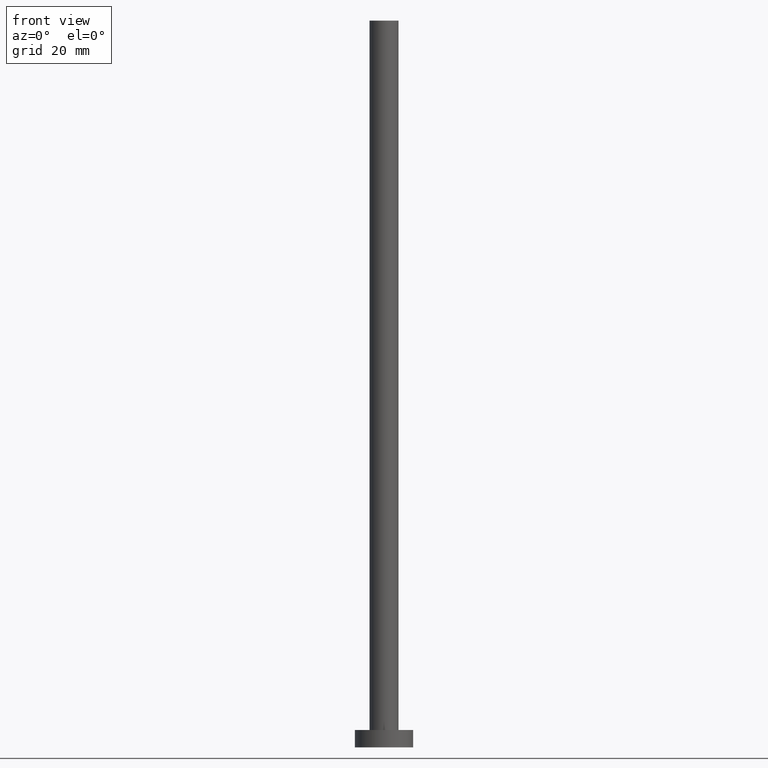
[diagram: clean part render]
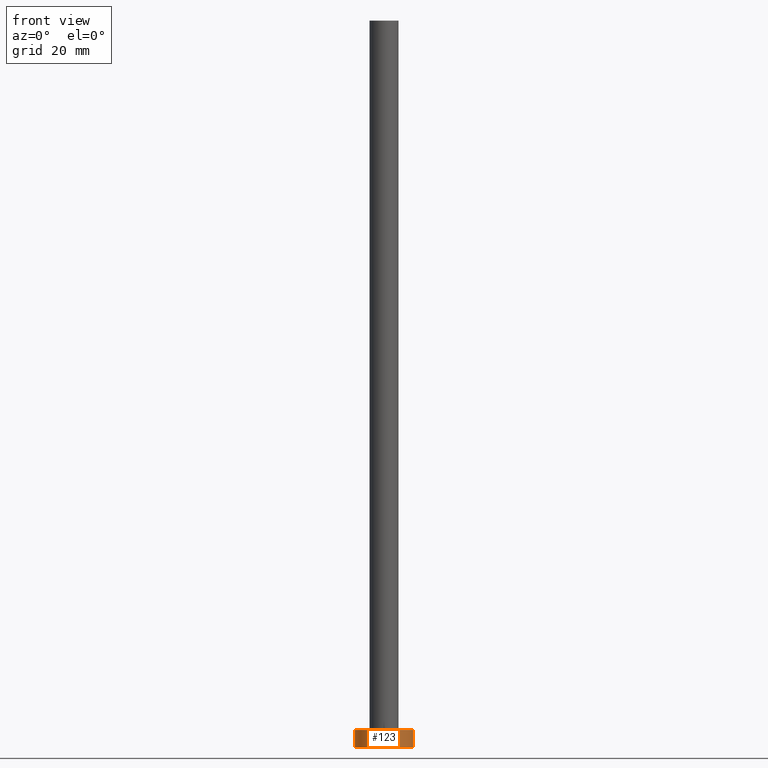
[diagram: same view with one face highlighted and labeled with its STEP entity id]
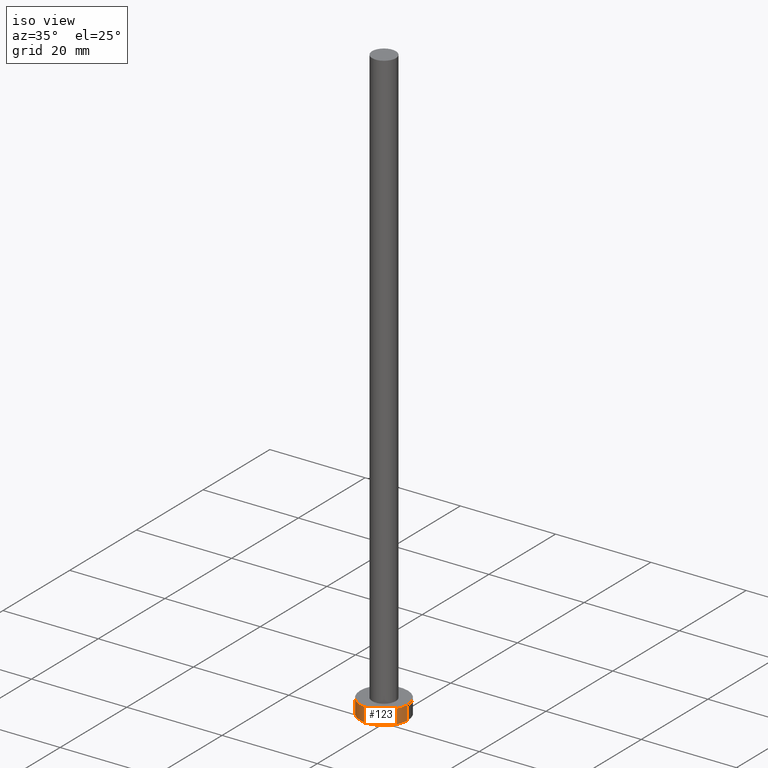
[diagram: same view with one face highlighted and labeled with its STEP entity id]
A machine part, front view. The second image highlights one B-rep face of the part: STEP entity #123.
A second angle (iso view) of the same face is appended — the face is thin or edge-on in the first view.
In plain terms, the highlighted cylindrical surface (edge-blend (fillet) strip) has radius 5 mm, axis along (-0, -0, -1).
Its self-contained STEP definition (entity closure, byte-faithful):
#2 = CYLINDRICAL_SURFACE ( 'NONE', #237, 5.000000000000000000 ) ;
#8 = DIRECTION ( 'NONE',  ( 0.000000000000000000, 0.000000000000000000, 1.000000000000000000 ) ) ;
#14 = VERTEX_POINT ( 'NONE', #210 ) ;
#15 = CARTESIAN_POINT ( 'NONE',  ( 0.000000000000000000, 0.000000000000000000, 3.000000000000000000 ) ) ;
#17 = CIRCLE ( 'NONE', #250, 5.000000000000000000 ) ;
#19 = LINE ( 'NONE', #34, #159 ) ;
#21 = CARTESIAN_POINT ( 'NONE',  ( 5.000000000000000000, 6.123233995736766282E-16, 3.000000000000000000 ) ) ;
#24 = DIRECTION ( 'NONE',  ( 1.000000000000000000, 0.000000000000000000, 0.000000000000000000 ) ) ;
#34 = CARTESIAN_POINT ( 'NONE',  ( -5.000000000000000000, 0.000000000000000000, 3.000000000000000000 ) ) ;
#53 = ORIENTED_EDGE ( 'NONE', *, *, #114, .T. ) ;
#65 = AXIS2_PLACEMENT_3D ( 'NONE', #223, #124, #24 ) ;
#66 = CARTESIAN_POINT ( 'NONE',  ( -5.000000000000000000, 0.000000000000000000, 3.000000000000000000 ) ) ;
#72 = DIRECTION ( 'NONE',  ( -1.000000000000000000, 0.000000000000000000, 0.000000000000000000 ) ) ;
#77 = EDGE_CURVE ( 'NONE', #232, #177, #17, .T. ) ;
#81 = CIRCLE ( 'NONE', #65, 5.000000000000000000 ) ;
#106 = VECTOR ( 'NONE', #243, 1000.000000000000000 ) ;
#114 = EDGE_CURVE ( 'NONE', #232, #175, #19, .T. ) ;
#121 = CARTESIAN_POINT ( 'NONE',  ( -5.000000000000000000, 0.000000000000000000, 0.000000000000000000 ) ) ;
#123 = ADVANCED_FACE ( 'NONE', ( #178 ), #2, .T. ) ;
#124 = DIRECTION ( 'NONE',  ( 0.000000000000000000, 0.000000000000000000, 1.000000000000000000 ) ) ;
#127 = CARTESIAN_POINT ( 'NONE',  ( 5.000000000000000000, 6.123233995736766282E-16, 3.000000000000000000 ) ) ;
#139 = DIRECTION ( 'NONE',  ( -0.000000000000000000, -0.000000000000000000, -1.000000000000000000 ) ) ;
#159 = VECTOR ( 'NONE', #139, 1000.000000000000000 ) ;
#163 = LINE ( 'NONE', #127, #106 ) ;
#164 = ORIENTED_EDGE ( 'NONE', *, *, #190, .F. ) ;
#172 = EDGE_LOOP ( 'NONE', ( #164, #234, #53, #195 ) ) ;
#175 = VERTEX_POINT ( 'NONE', #121 ) ;
#177 = VERTEX_POINT ( 'NONE', #21 ) ;
#178 = FACE_OUTER_BOUND ( 'NONE', #172, .T. ) ;
#181 = CARTESIAN_POINT ( 'NONE',  ( 0.000000000000000000, 0.000000000000000000, 3.000000000000000000 ) ) ;
#190 = EDGE_CURVE ( 'NONE', #177, #14, #163, .T. ) ;
#195 = ORIENTED_EDGE ( 'NONE', *, *, #233, .T. ) ;
#201 = DIRECTION ( 'NONE',  ( -0.000000000000000000, -0.000000000000000000, -1.000000000000000000 ) ) ;
#210 = CARTESIAN_POINT ( 'NONE',  ( 5.000000000000000000, 6.123233995736766282E-16, 0.000000000000000000 ) ) ;
#218 = DIRECTION ( 'NONE',  ( 1.000000000000000000, 0.000000000000000000, 0.000000000000000000 ) ) ;
#223 = CARTESIAN_POINT ( 'NONE',  ( 0.000000000000000000, 0.000000000000000000, 0.000000000000000000 ) ) ;
#232 = VERTEX_POINT ( 'NONE', #66 ) ;
#233 = EDGE_CURVE ( 'NONE', #175, #14, #81, .T. ) ;
#234 = ORIENTED_EDGE ( 'NONE', *, *, #77, .F. ) ;
#237 = AXIS2_PLACEMENT_3D ( 'NONE', #15, #201, #72 ) ;
#243 = DIRECTION ( 'NONE',  ( -0.000000000000000000, -0.000000000000000000, -1.000000000000000000 ) ) ;
#250 = AXIS2_PLACEMENT_3D ( 'NONE', #181, #8, #218 ) ;